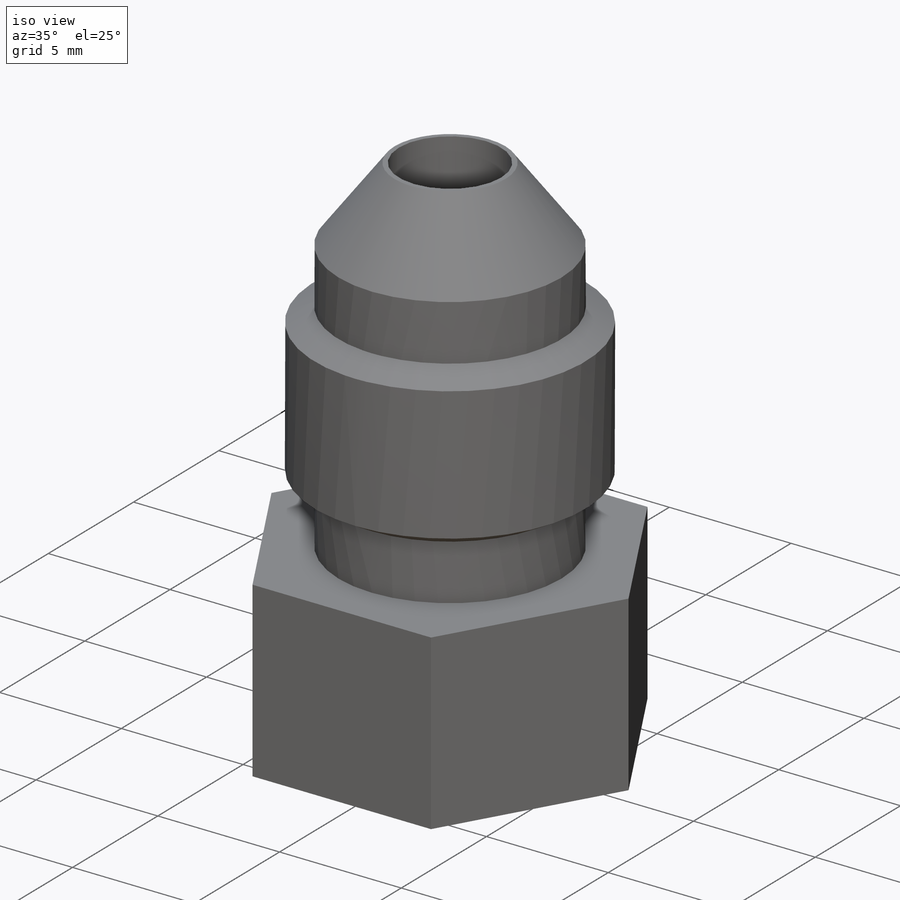
[diagram: iso view]
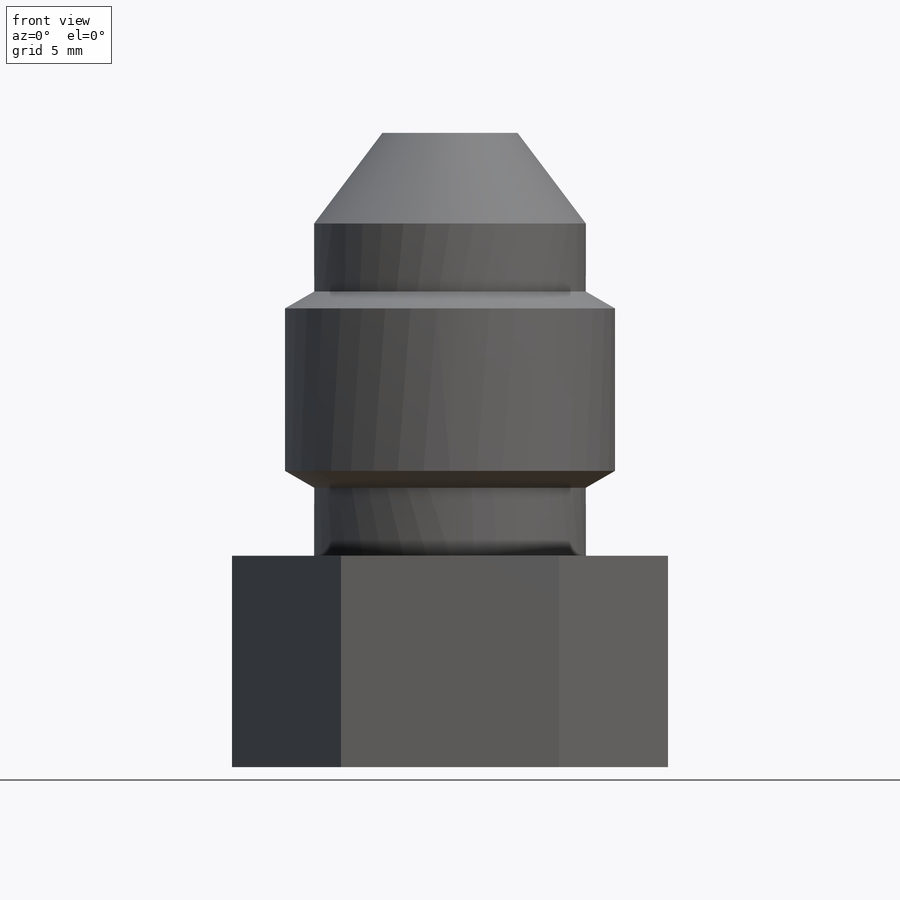
[diagram: front view]
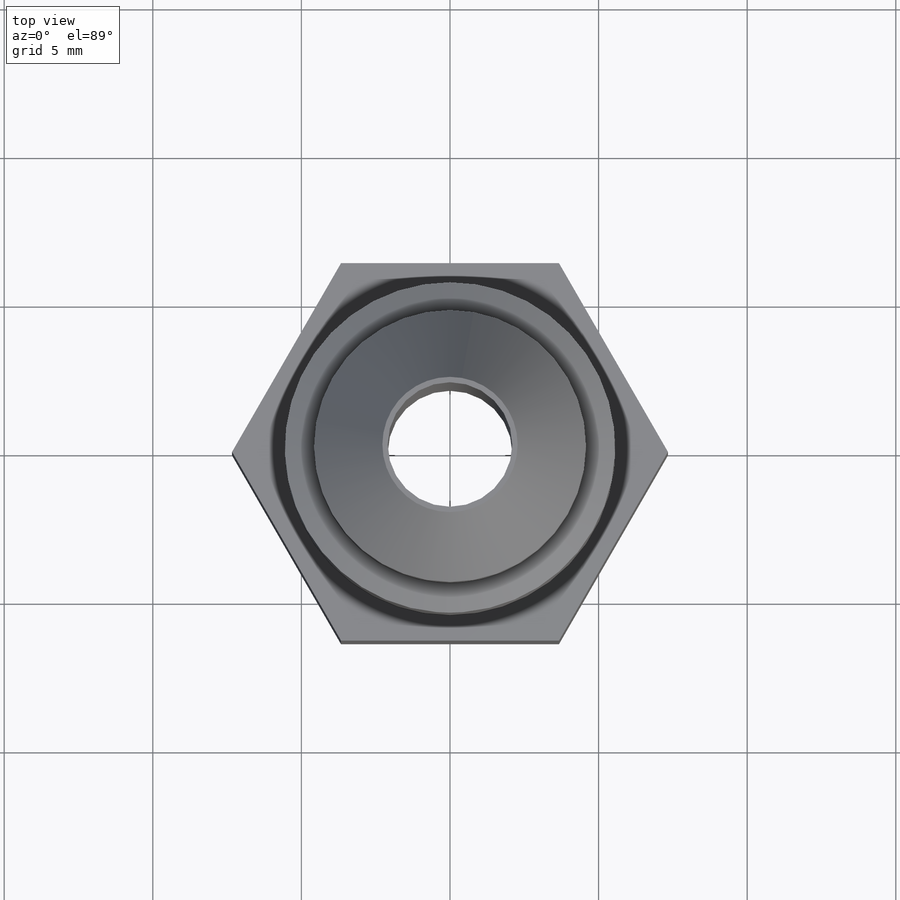
[diagram: top view]
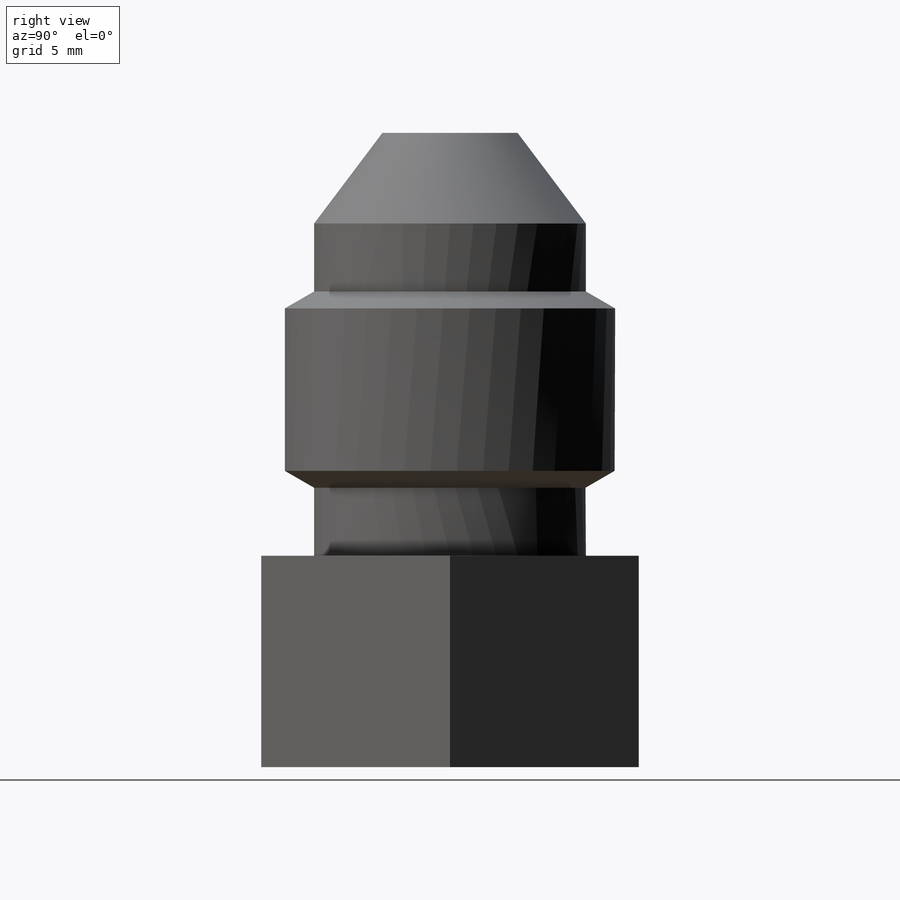
[diagram: right view]
SOLIDWORKS PART (.sldprt)
format: sldprt  version: not decoded by parser v0  size: 432,640 bytes
history: native  units: mm
features: sketch x6, extrude x2, revolve x2, cut_extrude x2, material x1 (+11 scaffold rows collapsed)
feature tree (24):
  scaffold x11  (default folders/planes/origin — collapsed)
  material  "Plain Carbon Steel"
  sketch  "Sketch1"  dims[D1=12.7mm]
  extrude  "Boss-Extrude1"  Depth=7.112mm
  sketch  "Sketch2"  dims[D1=9.144mm]
  extrude  "Boss-Extrude2"  Depth=11.176mm
  sketch  "Sketch3"  dims[c1.D1=~6.975828mm c2.D1=~62.795313deg c3.D1=11.176mm c4.D1=37.0deg c4.D2=3.048mm]
  revolve  "Revolve1"  Angle=360deg
  sketch  "Sketch4"  dims[D1=8.001mm]
  cut_extrude  "Cut-Extrude1"  Depth=4.7625mm
  sketch  "Sketch5"  dims[D1=4.191mm]
  cut_extrude  "Cut-Extrude2"  [1 undecoded]
  sketch  "Sketch7"  dims[c1.D1=~5.55625mm c1.D2=2.286mm c1.D3=2.286mm c1.D4=~0.98425mm c2.D4=60.0deg]
  revolve  "Revolve2"  Angle=360deg
decode coverage: 11 of 12 modeling features carry decoded parameters
note: ~ marks probable driven/reference dimensions
note: 1 parameter value undecoded
note: suppression state not decoded; provenance and decode notes live in map.json
